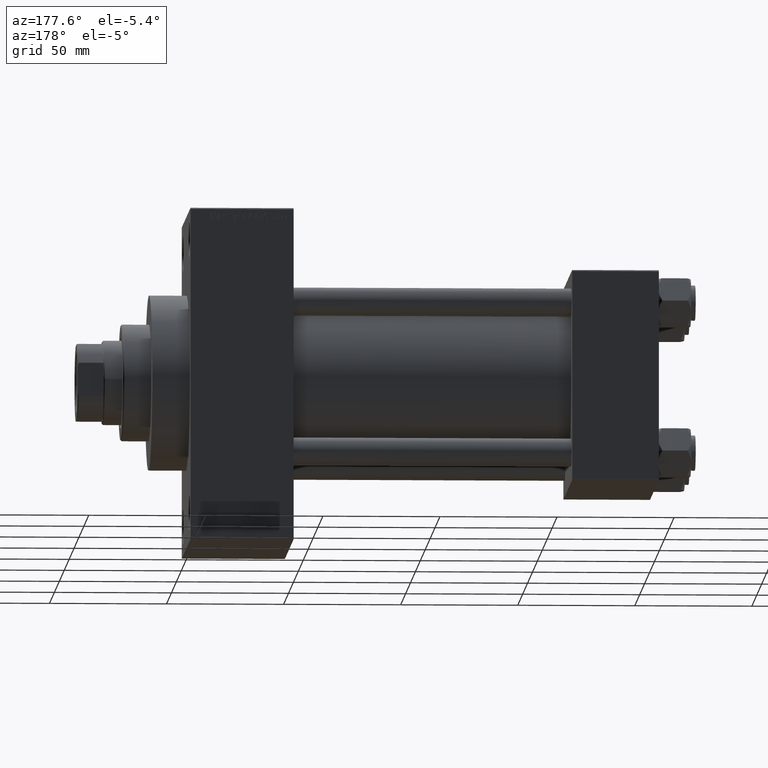
[diagram: clean part render]
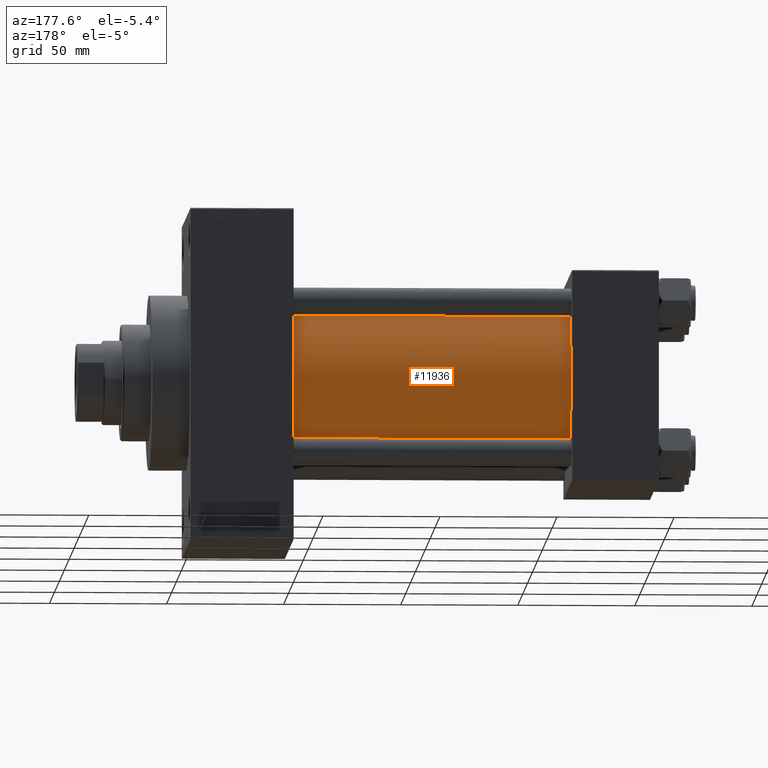
[diagram: same view with one face highlighted and labeled with its STEP entity id]
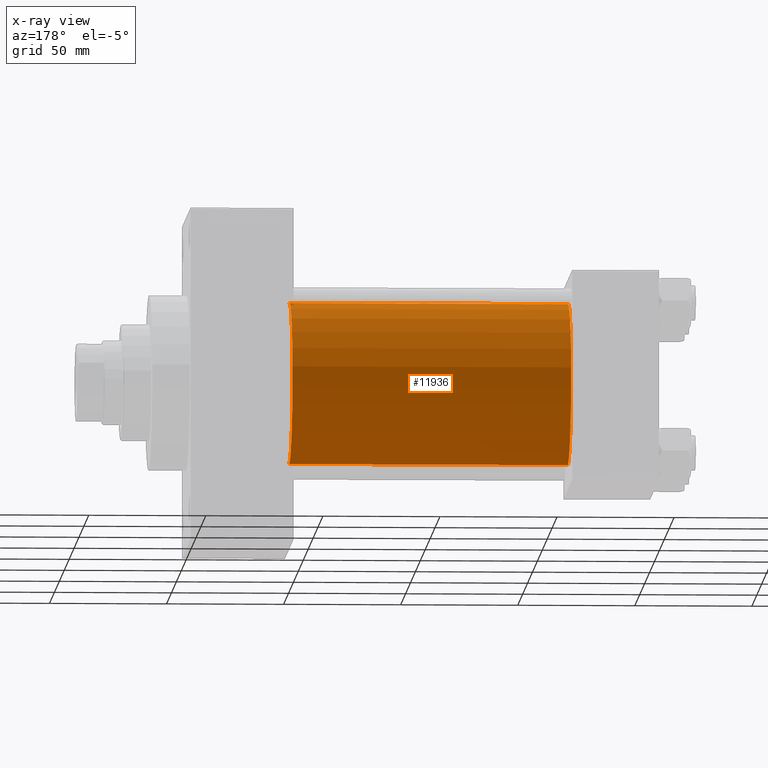
[diagram: x-ray of the same camera — body ghosted, the highlighted face saturated]
A machine part, auxiliary view. The second image highlights one B-rep face of the part: STEP entity #11936.
The next image is the same camera in x-ray: the body ghosted, the highlighted face saturated — about 1% of this face is hidden behind the body in this view.
In plain terms, the highlighted cylindrical surface (partial cylindrical patch) has radius 34.5 mm, axis along (-1, -0, -0).
Its self-contained STEP definition (entity closure, byte-faithful):
#1209 = EDGE_CURVE ( 'NONE', #37810, #3998, #26998, .T. ) ;
#2702 = CARTESIAN_POINT ( 'NONE',  ( 37.00000000000000711, -2.602085213965210642E-15, 34.50000000000000000 ) ) ;
#3226 = VERTEX_POINT ( 'NONE', #39904 ) ;
#3998 = VERTEX_POINT ( 'NONE', #38311 ) ;
#4285 = DIRECTION ( 'NONE',  ( -1.000000000000000000, -0.000000000000000000, -0.000000000000000000 ) ) ;
#7895 = AXIS2_PLACEMENT_3D ( 'NONE', #29561, #40289, #25972 ) ;
#8357 = ORIENTED_EDGE ( 'NONE', *, *, #20577, .T. ) ;
#8938 = VECTOR ( 'NONE', #27037, 1000.000000000000000 ) ;
#11444 = FACE_OUTER_BOUND ( 'NONE', #47018, .T. ) ;
#11788 = VERTEX_POINT ( 'NONE', #2702 ) ;
#11936 = ADVANCED_FACE ( 'NONE', ( #11444 ), #29843, .T. ) ;
#13774 = EDGE_CURVE ( 'NONE', #3998, #11788, #34418, .T. ) ;
#18029 = CARTESIAN_POINT ( 'NONE',  ( 156.0000000000000000, 1.622946243093158675E-15, -34.50000000000000000 ) ) ;
#19231 = DIRECTION ( 'NONE',  ( 1.000000000000000000, 0.000000000000000000, 0.000000000000000000 ) ) ;
#19895 = ORIENTED_EDGE ( 'NONE', *, *, #13774, .F. ) ;
#20577 = EDGE_CURVE ( 'NONE', #37810, #3226, #41291, .T. ) ;
#22924 = ORIENTED_EDGE ( 'NONE', *, *, #38491, .T. ) ;
#25972 = DIRECTION ( 'NONE',  ( 0.000000000000000000, 0.000000000000000000, 1.000000000000000000 ) ) ;
#26998 = CIRCLE ( 'NONE', #46818, 34.50000000000000000 ) ;
#27037 = DIRECTION ( 'NONE',  ( -1.000000000000000000, -0.000000000000000000, -0.000000000000000000 ) ) ;
#27703 = CIRCLE ( 'NONE', #7895, 34.50000000000000000 ) ;
#29380 = CARTESIAN_POINT ( 'NONE',  ( 156.0000000000000000, -2.602085213965210642E-15, 0.000000000000000000 ) ) ;
#29515 = CARTESIAN_POINT ( 'NONE',  ( 156.0000000000000000, -2.602085213965210642E-15, 0.000000000000000000 ) ) ;
#29561 = CARTESIAN_POINT ( 'NONE',  ( 37.00000000000000711, -2.602085213965210642E-15, 0.000000000000000000 ) ) ;
#29843 = CYLINDRICAL_SURFACE ( 'NONE', #34855, 34.50000000000000000 ) ;
#33792 = DIRECTION ( 'NONE',  ( 0.000000000000000000, 0.000000000000000000, -1.000000000000000000 ) ) ;
#34418 = LINE ( 'NONE', #45391, #8938 ) ;
#34855 = AXIS2_PLACEMENT_3D ( 'NONE', #29380, #4285, #36534 ) ;
#36534 = DIRECTION ( 'NONE',  ( 0.000000000000000000, 0.000000000000000000, 1.000000000000000000 ) ) ;
#37248 = DIRECTION ( 'NONE',  ( -1.000000000000000000, -0.000000000000000000, -0.000000000000000000 ) ) ;
#37810 = VERTEX_POINT ( 'NONE', #18029 ) ;
#37941 = CARTESIAN_POINT ( 'NONE',  ( 156.0000000000000000, 1.622946243093158675E-15, -34.50000000000000000 ) ) ;
#38311 = CARTESIAN_POINT ( 'NONE',  ( 156.0000000000000000, -2.602085213965210642E-15, 34.50000000000000000 ) ) ;
#38491 = EDGE_CURVE ( 'NONE', #3226, #11788, #27703, .T. ) ;
#39904 = CARTESIAN_POINT ( 'NONE',  ( 37.00000000000000711, 1.622946243093158675E-15, -34.50000000000000000 ) ) ;
#40289 = DIRECTION ( 'NONE',  ( 1.000000000000000000, -0.000000000000000000, 0.000000000000000000 ) ) ;
#41291 = LINE ( 'NONE', #37941, #43261 ) ;
#43261 = VECTOR ( 'NONE', #37248, 1000.000000000000000 ) ;
#45391 = CARTESIAN_POINT ( 'NONE',  ( 156.0000000000000000, -2.602085213965210642E-15, 34.50000000000000000 ) ) ;
#45640 = ORIENTED_EDGE ( 'NONE', *, *, #1209, .F. ) ;
#46818 = AXIS2_PLACEMENT_3D ( 'NONE', #29515, #19231, #33792 ) ;
#47018 = EDGE_LOOP ( 'NONE', ( #45640, #8357, #22924, #19895 ) ) ;